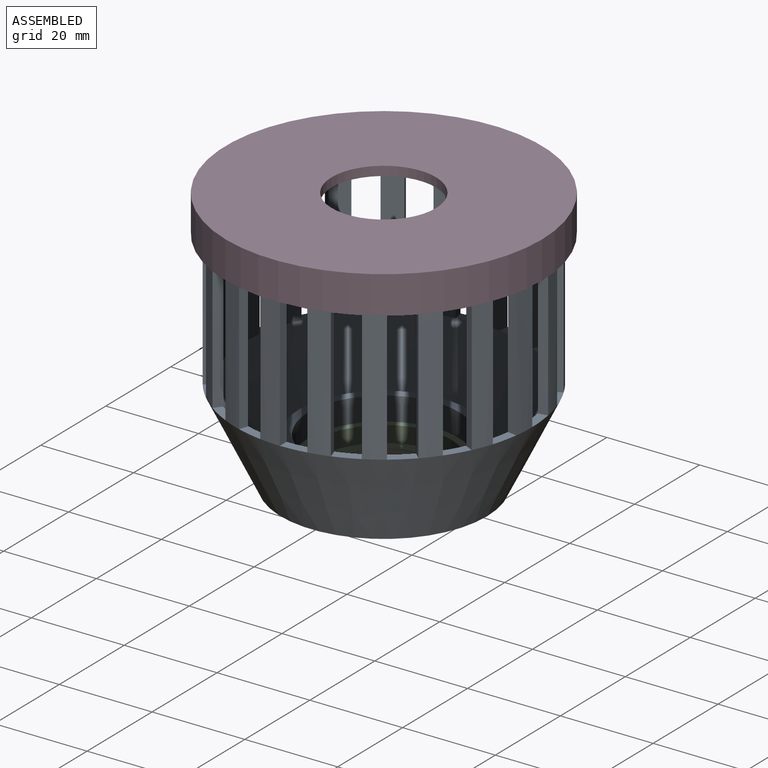
[diagram: assembled view]
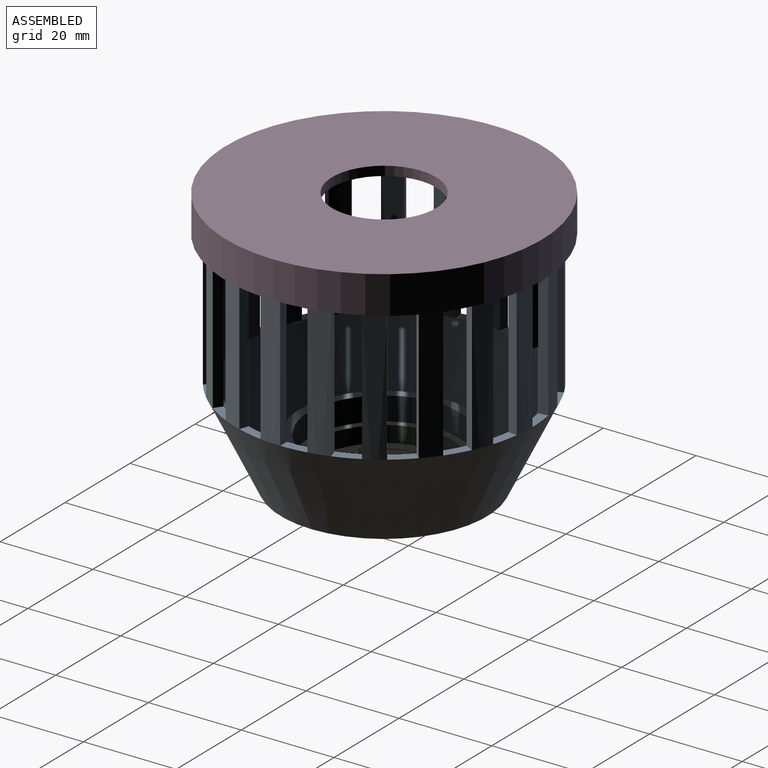
[diagram: assembled view, second angle]
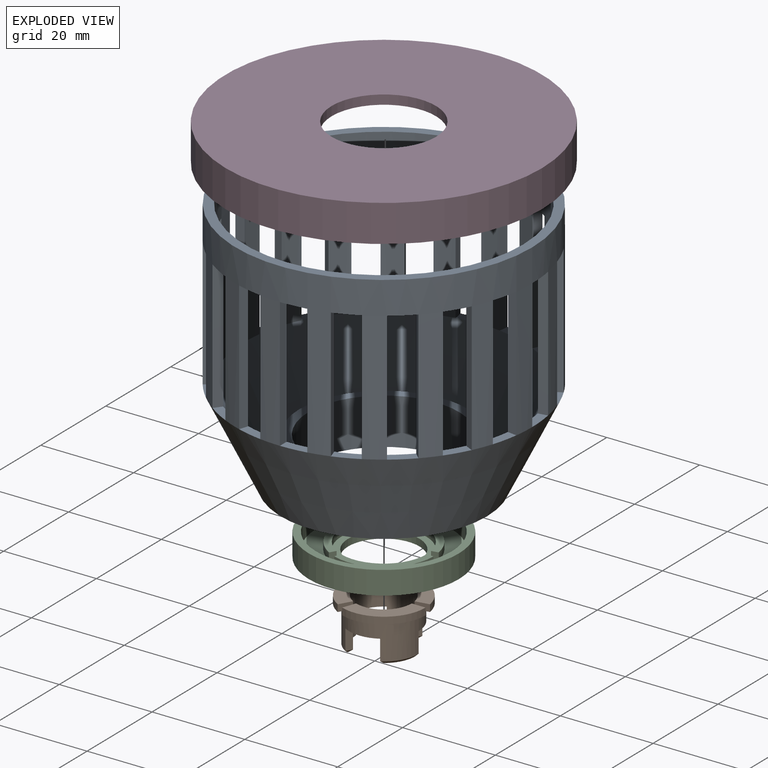
[diagram: exploded view]
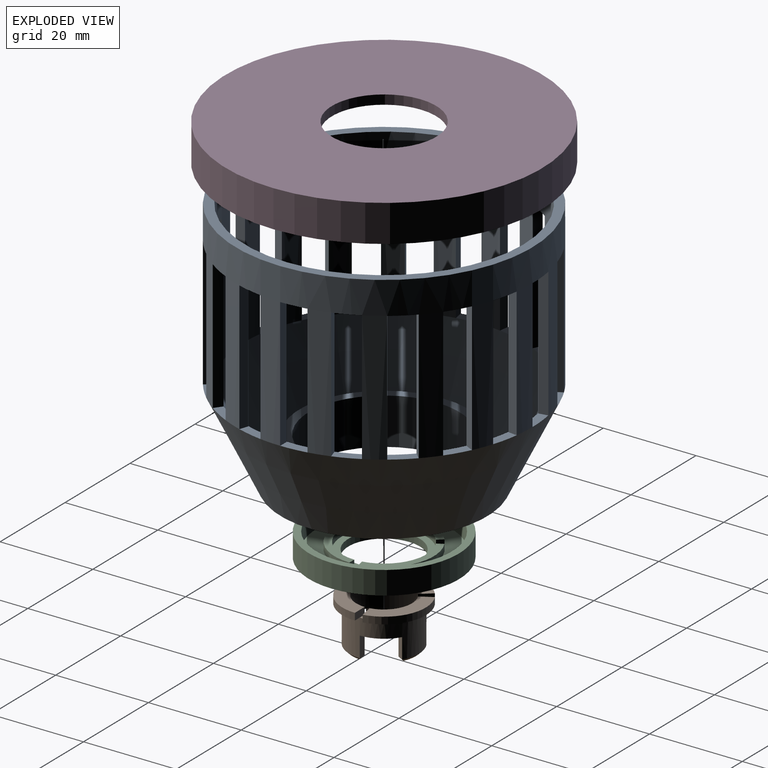
[diagram: exploded view, second angle]
ASSEMBLY  parts=4 mates=3
PART A: 90 faces, bbox 64x64x55 mm
  f0: plane 5.56x2.46mm, normal (0,0,1), area 10.8mm2, adj f20,f26,f51,f88
  f1: plane 5.71x3.16mm, normal (0,0,1), area 10.8mm2, adj f20,f26,f50,f53
  f2: plane 5.66x4.49mm, normal (0,0,1), area 10.8mm2, adj f20,f26,f52,f55
  f3: plane 5.39x5.05mm, normal (0,0,1), area 10.8mm2, adj f20,f26,f54,f57
  f4: plane 5.75x3.95mm, normal (0,0,1), area 10.8mm2, adj f20,f26,f56,f59
  f5: plane 5.56x2.46mm, normal (0,0,1), area 10.8mm2, adj f20,f26,f58,f61
  f6: plane 5.71x3.16mm, normal (0,0,1), area 10.8mm2, adj f20,f26,f60,f63
  f7: plane 5.66x4.49mm, normal (0,0,1), area 10.8mm2, adj f20,f26,f62,f65
  f8: plane 5.39x5.05mm, normal (0,0,1), area 10.8mm2, adj f20,f26,f64,f67
  f9: plane 5.75x3.95mm, normal (0,0,1), area 10.8mm2, adj f20,f26,f66,f69
  f10: plane 5.56x2.46mm, normal (0,0,1), area 10.8mm2, adj f20,f26,f68,f71
  f11: plane 5.71x3.16mm, normal (0,0,1), area 10.8mm2, adj f20,f26,f70,f73
  f12: plane 5.66x4.49mm, normal (0,0,1), area 10.8mm2, adj f20,f26,f72,f75
  f13: plane 5.39x5.05mm, normal (0,0,1), area 10.8mm2, adj f20,f26,f74,f77
  f14: plane 5.75x3.95mm, normal (0,0,1), area 10.8mm2, adj f20,f26,f76,f79
  f15: plane 5.56x2.46mm, normal (0,0,1), area 10.8mm2, adj f20,f26,f78,f81
  f16: plane 5.71x3.16mm, normal (0,0,1), area 10.8mm2, adj f20,f26,f80,f83
  f17: plane 5.66x4.49mm, normal (0,0,1), area 10.8mm2, adj f20,f26,f82,f85
  f18: plane 5.39x5.05mm, normal (0,0,1), area 10.8mm2, adj f20,f26,f84,f87
  f19: plane 5.75x3.95mm, normal (0,0,1), area 10.8mm2, adj f20,f26,f86,f89
  f20: cone r=21.23mm half-angle=26deg, axis (0,0,1), area 3222.6mm2, adj f0,f1,f2,f3,f4,f5,f6,f7
  f21: plane 42.45x42.45mm, normal (0,0,1), area 368.9mm2, adj f20,f22
  f22: cylinder r=18.25mm len=36.5mm, axis (0,0,1), area 917.3mm2, adj f21,f23
  f23: plane 36.5x36.5mm, normal (0,0,1), area 216.8mm2, adj f22,f24
  f24: cylinder r=16.25mm len=32.5mm, axis (0,0,1), area 1021mm2, adj f23,f25
  f25: plane 44.5x44.5mm, normal (0,0,-1), area 725.7mm2, adj f24,f26
  f26: cone r=32mm half-angle=26deg, axis (0,0,1), area 3792.1mm2, adj f0,f1,f2,f3,f4,f5,f6,f7
  f27: plane 5.75x3.95mm, normal (0,0,-1), area 10.8mm2, adj f46,f48,f86,f89
  f28: plane 5.39x5.05mm, normal (0,0,-1), area 10.8mm2, adj f46,f48,f84,f87
  f29: plane 5.66x4.49mm, normal (0,0,-1), area 10.8mm2, adj f46,f48,f82,f85
  f30: plane 5.71x3.16mm, normal (0,0,-1), area 10.8mm2, adj f46,f48,f80,f83
  f31: plane 5.56x2.46mm, normal (0,0,-1), area 10.8mm2, adj f46,f48,f78,f81
  f32: plane 5.75x3.95mm, normal (0,0,-1), area 10.8mm2, adj f46,f48,f76,f79
  f33: plane 5.39x5.05mm, normal (0,0,-1), area 10.8mm2, adj f46,f48,f74,f77
  f34: plane 5.66x4.49mm, normal (0,0,-1), area 10.8mm2, adj f46,f48,f72,f75
  f35: plane 5.71x3.16mm, normal (0,0,-1), area 10.8mm2, adj f46,f48,f70,f73
  f36: plane 5.56x2.46mm, normal (0,0,-1), area 10.8mm2, adj f46,f48,f68,f71
  f37: plane 5.75x3.95mm, normal (0,0,-1), area 10.8mm2, adj f46,f48,f66,f69
  f38: plane 5.39x5.05mm, normal (0,0,-1), area 10.8mm2, adj f46,f48,f64,f67
  f39: plane 5.66x4.49mm, normal (0,0,-1), area 10.8mm2, adj f46,f48,f62,f65
  f40: plane 5.71x3.16mm, normal (0,0,-1), area 10.8mm2, adj f46,f48,f60,f63
  f41: plane 5.56x2.46mm, normal (0,0,-1), area 10.8mm2, adj f46,f48,f58,f61
  f42: plane 5.75x3.95mm, normal (0,0,-1), area 10.8mm2, adj f46,f48,f56,f59
  f43: plane 5.39x5.05mm, normal (0,0,-1), area 10.8mm2, adj f46,f48,f54,f57
  f44: plane 5.66x4.49mm, normal (0,0,-1), area 10.8mm2, adj f46,f48,f52,f55
  f45: plane 5.71x3.16mm, normal (0,0,-1), area 10.8mm2, adj f46,f48,f50,f53
  f46: cylinder r=30mm len=60mm, axis (0,0,1), area 3665.2mm2, adj f20,f27,f28,f29,f30,f31,f32,f33
  f47: plane 5.56x2.46mm, normal (0,0,-1), area 10.8mm2, adj f46,f48,f51,f88
  f48: cylinder r=32mm len=64mm, axis (0,0,1), area 3909.5mm2, adj f26,f27,f28,f29,f30,f31,f32,f33
  f49: plane 64x64mm, normal (0,0,1), area 389.6mm2, adj f46,f48
  f50: plane 28x1.98mm, normal (-0.14,-0.99,0), area 56mm2, adj f1,f45,f46,f48
  f51: plane 28x2mm, normal (0,1,0), area 56mm2, adj f0,f46,f47,f48
  f52: plane 28x1.8mm, normal (-0.44,-0.9,0), area 56mm2, adj f2,f44,f46,f48
  f53: plane 28x1.9mm, normal (0.31,0.95,0), area 56mm2, adj f1,f45,f46,f48
  f54: plane 28x1.44mm, normal (-0.69,-0.72,0), area 56mm2, adj f3,f43,f46,f48
  f55: plane 28x1.62mm, normal (0.59,0.81,0), area 56mm2, adj f2,f44,f46,f48
  f56: plane 28x1.77mm, normal (-0.88,-0.47,0), area 56mm2, adj f4,f42,f46,f48
  f57: plane 28x1.62mm, normal (0.81,0.59,0), area 56mm2, adj f3,f43,f46,f48
  f58: plane 28x1.97mm, normal (-0.98,-0.17,0), area 56mm2, adj f5,f41,f46,f48
  f59: plane 28x1.9mm, normal (0.95,0.31,0), area 56mm2, adj f4,f42,f46,f48
  f60: plane 28x1.98mm, normal (-0.99,0.14,0), area 56mm2, adj f6,f40,f46,f48
  f61: plane 28x2mm, normal (1,0,0), area 56mm2, adj f5,f41,f46,f48
  f62: plane 28x1.8mm, normal (-0.9,0.44,0), area 56mm2, adj f7,f39,f46,f48
  f63: plane 28x1.9mm, normal (0.95,-0.31,0), area 56mm2, adj f6,f40,f46,f48
  f64: plane 28x1.44mm, normal (-0.72,0.69,0), area 56mm2, adj f8,f38,f46,f48
  f65: plane 28x1.62mm, normal (0.81,-0.59,0), area 56mm2, adj f7,f39,f46,f48
  f66: plane 28x1.77mm, normal (-0.47,0.88,0), area 56mm2, adj f9,f37,f46,f48
  f67: plane 28x1.62mm, normal (0.59,-0.81,0), area 56mm2, adj f8,f38,f46,f48
  f68: plane 28x1.97mm, normal (-0.17,0.98,0), area 56mm2, adj f10,f36,f46,f48
  f69: plane 28x1.9mm, normal (0.31,-0.95,0), area 56mm2, adj f9,f37,f46,f48
  f70: plane 28x1.98mm, normal (0.14,0.99,0), area 56mm2, adj f11,f35,f46,f48
  f71: plane 28x2mm, normal (0,-1,0), area 56mm2, adj f10,f36,f46,f48
  f72: plane 28x1.8mm, normal (0.44,0.9,0), area 56mm2, adj f12,f34,f46,f48
  f73: plane 28x1.9mm, normal (-0.31,-0.95,0), area 56mm2, adj f11,f35,f46,f48
  f74: plane 28x1.44mm, normal (0.69,0.72,0), area 56mm2, adj f13,f33,f46,f48
  f75: plane 28x1.62mm, normal (-0.59,-0.81,0), area 56mm2, adj f12,f34,f46,f48
  f76: plane 28x1.77mm, normal (0.88,0.47,0), area 56mm2, adj f14,f32,f46,f48
  f77: plane 28x1.62mm, normal (-0.81,-0.59,0), area 56mm2, adj f13,f33,f46,f48
  f78: plane 28x1.97mm, normal (0.98,0.17,0), area 56mm2, adj f15,f31,f46,f48
  f79: plane 28x1.9mm, normal (-0.95,-0.31,0), area 56mm2, adj f14,f32,f46,f48
  f80: plane 28x1.98mm, normal (0.99,-0.14,0), area 56mm2, adj f16,f30,f46,f48
  f81: plane 28x2mm, normal (-1,0,0), area 56mm2, adj f15,f31,f46,f48
  f82: plane 28x1.8mm, normal (0.9,-0.44,0), area 56mm2, adj f17,f29,f46,f48
  f83: plane 28x1.9mm, normal (-0.95,0.31,0), area 56mm2, adj f16,f30,f46,f48
  f84: plane 28x1.44mm, normal (0.72,-0.69,0), area 56mm2, adj f18,f28,f46,f48
  f85: plane 28x1.62mm, normal (-0.81,0.59,0), area 56mm2, adj f17,f29,f46,f48
  f86: plane 28x1.77mm, normal (0.47,-0.88,0), area 56mm2, adj f19,f27,f46,f48
  f87: plane 28x1.62mm, normal (-0.59,0.81,0), area 56mm2, adj f18,f28,f46,f48
  f88: plane 28x1.97mm, normal (0.17,-0.98,0), area 56mm2, adj f0,f46,f47,f48
  f89: plane 28x1.9mm, normal (-0.31,0.95,0), area 56mm2, adj f19,f27,f46,f48
PART B: 44 faces, bbox 18x18x10 mm
  f0: plane 1.9x1.82mm, normal (0,0,1), area 1.8mm2, adj f5,f7,f25,f31
  f1: plane 1.85x1.7mm, normal (0,0,1), area 1.8mm2, adj f5,f7,f14,f24
  f2: plane 6.5x4.5mm, normal (0,0,-1), area 10.6mm2, adj f5,f7,f18,f21
  f3: plane 7.5x2.3mm, normal (0,0,-1), area 10.6mm2, adj f5,f7,f9,f17
  f4: plane 1.59x1.3mm, normal (0,0,1), area 1.8mm2, adj f5,f7,f15,f30
  f5: cylinder r=6mm len=12mm, axis (0,0,1), area 266.7mm2, adj f0,f1,f2,f3,f4,f6,f9,f10
  f6: plane 6.5x4.5mm, normal (0,0,-1), area 10.6mm2, adj f5,f7,f10,f20
  f7: cylinder r=7.5mm len=15mm, axis (0,0,1), area 268.6mm2, adj f0,f1,f2,f3,f4,f6,f9,f10
  f8: plane 5.05x3.07mm, normal (0,0,-1), area 1.8mm2, adj f40,f41,f42,f43
  f9: plane 4.4x1.3mm, normal (-0.87,-0.5,0), area 6.6mm2, adj f3,f5,f7,f43
  f10: plane 4.4x1.5mm, normal (0,1,0), area 6.6mm2, adj f5,f6,f7,f40
  f11: plane 12.08x9mm, normal (0,0,-1), area 23.8mm2, adj f7,f12,f14,f15
  f12: cylinder r=9mm len=12.08mm, axis (0,0,1), area 25.9mm2, adj f11,f13,f14,f15
  f13: plane 12.08x9mm, normal (0,0,1), area 43.2mm2, adj f5,f12,f14,f15
  f14: plane 2.82x1.5mm, normal (-0.94,0.34,0), area 4.5mm2, adj f1,f5,f11,f12,f13
  f15: plane 3x1.5mm, normal (0,1,0), area 4.5mm2, adj f4,f5,f11,f12,f13
  f16: plane 5.05x3.07mm, normal (0,0,-1), area 1.8mm2, adj f32,f33,f34,f35
  f17: plane 4.4x1.3mm, normal (0.87,-0.5,0), area 6.6mm2, adj f3,f5,f7,f32
  f18: plane 4.4x1.5mm, normal (0,1,0), area 6.6mm2, adj f2,f5,f7,f35
  f19: plane 5.83x0.91mm, normal (0,0,-1), area 1.8mm2, adj f36,f37,f38,f39
  f20: plane 4.4x1.3mm, normal (0.87,-0.5,0), area 6.6mm2, adj f5,f6,f7,f39
  f21: plane 4.4x1.3mm, normal (-0.87,-0.5,0), area 6.6mm2, adj f2,f5,f7,f36
  f22: cylinder r=9mm len=14.69mm, axis (0,0,1), area 25.9mm2, adj f23,f24,f25,f26
  f23: plane 14.69x6mm, normal (0,0,1), area 43.2mm2, adj f5,f22,f24,f25
  f24: plane 2.6x1.5mm, normal (0.87,-0.5,0), area 4.5mm2, adj f1,f5,f22,f23,f26
  f25: plane 2.3x1.93mm, normal (0.77,0.64,0), area 4.5mm2, adj f0,f5,f22,f23,f26
  f26: plane 14.69x5.25mm, normal (0,0,-1), area 23.8mm2, adj f7,f22,f24,f25
  f27: plane 13.36x7.7mm, normal (0,0,-1), area 23.8mm2, adj f7,f28,f30,f31
  f28: cylinder r=9mm len=13.36mm, axis (0,0,1), area 25.9mm2, adj f27,f29,f30,f31
  f29: plane 13.36x7.96mm, normal (0,0,1), area 43.2mm2, adj f5,f28,f30,f31
  f30: plane 2.95x1.5mm, normal (0.17,-0.98,0), area 4.5mm2, adj f4,f5,f27,f28,f29
  f31: plane 2.6x1.5mm, normal (-0.87,-0.5,0), area 4.5mm2, adj f0,f5,f27,f28,f29
  f32: plane 1.3x0.96mm, normal (0.61,-0.35,-0.71), area 0.8mm2, adj f16,f17,f33,f34
  f33: cone r=7.5mm half-angle=45deg, axis (0,0,1), area 5.9mm2, adj f7,f16,f32,f35
  f34: cone r=6.6mm half-angle=45deg, axis (0,0,-1), area 5.1mm2, adj f5,f16,f32,f35
  f35: plane 1.5x0.6mm, normal (0,0.71,-0.71), area 0.8mm2, adj f16,f18,f33,f34
  f36: plane 1.3x0.98mm, normal (-0.61,-0.35,-0.71), area 0.8mm2, adj f19,f21,f37,f38
  f37: cone r=7.5mm half-angle=45deg, axis (0,0,1), area 5.9mm2, adj f7,f19,f36,f39
  f38: cone r=6.6mm half-angle=45deg, axis (0,0,-1), area 5.1mm2, adj f5,f19,f36,f39
  f39: plane 1.3x0.98mm, normal (0.61,-0.35,-0.71), area 0.8mm2, adj f19,f20,f37,f38
  f40: plane 1.5x0.6mm, normal (0,0.71,-0.71), area 0.8mm2, adj f8,f10,f41,f42
  f41: cone r=7.5mm half-angle=45deg, axis (0,0,1), area 5.9mm2, adj f7,f8,f40,f43
  f42: cone r=6.6mm half-angle=45deg, axis (0,0,-1), area 5.1mm2, adj f5,f8,f40,f43
  f43: plane 1.3x0.96mm, normal (-0.61,-0.35,-0.71), area 0.8mm2, adj f8,f9,f41,f42
PART C: 21 faces, bbox 32.3x32.3x5 mm
  f0: plane 29.3x29.3mm, normal (0,0,1), area 402mm2, adj f1,f5,f6,f8,f9,f10,f12,f13
  f1: cylinder r=7.7mm len=15.4mm, axis (0,0,1), area 72.6mm2, adj f0,f2
  f2: plane 32.3x32.3mm, normal (0,0,-1), area 633.1mm2, adj f1,f3
  f3: cylinder r=16.15mm len=32.3mm, axis (0,0,1), area 507.4mm2, adj f2,f4
  f4: plane 32.3x32.3mm, normal (0,0,1), area 145.1mm2, adj f3,f5
  f5: cylinder r=14.65mm len=29.3mm, axis (0,0,1), area 322.2mm2, adj f0,f4
  f6: cylinder r=10.7mm len=14.36mm, axis (0,0,1), area 30.8mm2, adj f0,f7,f9,f10
  f7: plane 14.36x10.7mm, normal (0,0,1), area 28.7mm2, adj f6,f8,f9,f10
  f8: cylinder r=9.2mm len=12.35mm, axis (0,0,1), area 26.5mm2, adj f0,f7,f9,f10
  f9: plane 1.5x1.41mm, normal (-0.94,0.34,0), area 2.3mm2, adj f0,f6,f7,f8
  f10: plane 1.5x1.5mm, normal (0,1,0), area 2.3mm2, adj f0,f6,f7,f8
  f11: plane 15.89x9.1mm, normal (0,0,1), area 28.7mm2, adj f12,f13,f14,f15
  f12: plane 1.5x1.3mm, normal (-0.87,-0.5,0), area 2.2mm2, adj f0,f11,f14,f15
  f13: plane 1.5x1.48mm, normal (0.17,-0.98,0), area 2.3mm2, adj f0,f11,f14,f15
  f14: cylinder r=9.2mm len=13.66mm, axis (0,0,1), area 26.5mm2, adj f0,f11,f12,f13
  f15: cylinder r=10.7mm len=15.89mm, axis (0,0,1), area 30.8mm2, adj f0,f11,f12,f13
  f16: cylinder r=10.7mm len=17.46mm, axis (0,0,1), area 30.8mm2, adj f0,f17,f19,f20
  f17: plane 17.46x6.1mm, normal (0,0,1), area 28.7mm2, adj f16,f18,f19,f20
  f18: cylinder r=9.2mm len=15.02mm, axis (0,0,1), area 26.5mm2, adj f0,f17,f19,f20
  f19: plane 1.5x1.15mm, normal (0.77,0.64,0), area 2.2mm2, adj f0,f16,f17,f18
  f20: plane 1.5x1.3mm, normal (0.87,-0.5,0), area 2.2mm2, adj f0,f16,f17,f18
PART D: 6 faces, bbox 68.2x68.2x8 mm
  f0: plane 64.2x64.2mm, normal (0,0,-1), area 2839.5mm2, adj f2,f4
  f1: cylinder r=34.1mm len=68.2mm, axis (0,0,-1), area 1714.1mm2, adj f3,f5
  f2: cylinder r=11.25mm len=22.5mm, axis (0,0,-1), area 141.4mm2, adj f0,f3
  f3: plane 68.2x68.2mm, normal (0,0,1), area 3255.5mm2, adj f1,f2
  f4: cylinder r=32.1mm len=64.2mm, axis (0,0,1), area 1210.1mm2, adj f0,f5
  f5: plane 68.2x68.2mm, normal (0,0,-1), area 415.9mm2, adj f1,f4
PLACE A t=(0,-77.2,0)mm
PLACE B t=(0,-77.2,0)mm
PLACE C t=(0,-77.2,0)mm
PLACE D t=(0,-77.2,0.1)mm
MATE fastened C.f1 <-> A.f20  axis (0,0,-1) through (0,-77.2,-55)mm
MATE fastened D.f1 <-> A.f20  axis (0,0,-1) through (0,-77.2,0.1)mm
MATE slider B.f5 <-> C.f1  axis (0,0,1) through (0,-77.2,-53.5)mm
